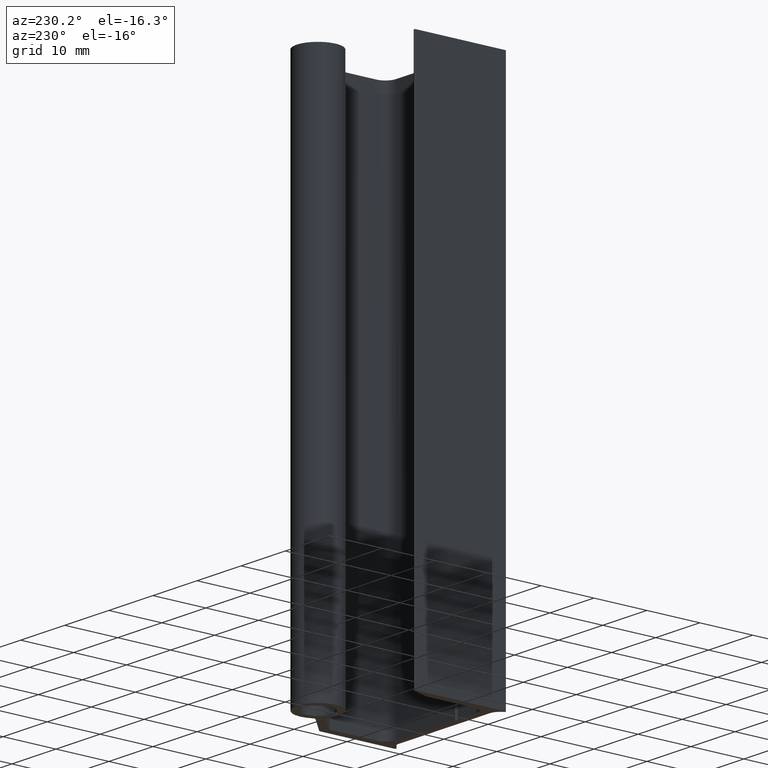
[diagram: clean part render]
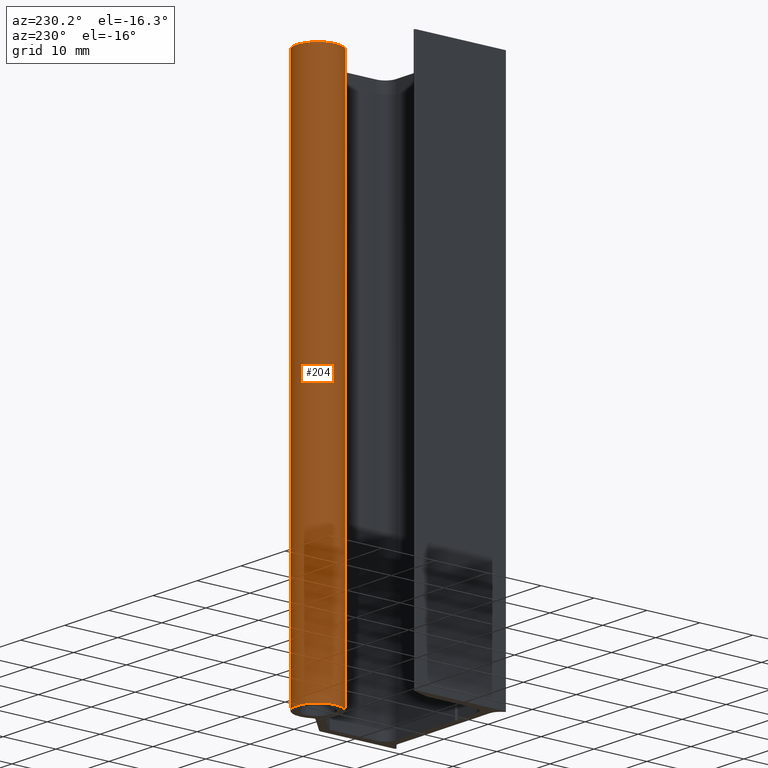
[diagram: same view with one face highlighted and labeled with its STEP entity id]
A machine part, auxiliary view. The second image highlights one B-rep face of the part: STEP entity #204.
In plain terms, the highlighted cylindrical surface (edge-blend (fillet) strip) has radius 4 mm, axis along (0, 0, 1).
Its self-contained STEP definition (entity closure, byte-faithful):
#144=CARTESIAN_POINT('',(8.102789592555155,18.068558810057709,0.0));
#145=VERTEX_POINT('',#144);
#153=CARTESIAN_POINT('',(8.102789592555155,18.068558810057709,100.0));
#154=VERTEX_POINT('',#153);
#155=CARTESIAN_POINT('',(8.102789592555155,18.068558810057709,0.0));
#156=DIRECTION('',(0.0,0.0,1.0));
#157=VECTOR('',#156,100.0);
#158=LINE('',#155,#157);
#159=EDGE_CURVE('',#145,#154,#158,.T.);
#172=CARTESIAN_POINT('',(4.599999999985585,19.999999999995055,0.0));
#173=DIRECTION('',(0.0,0.0,1.0));
#174=DIRECTION('',(0.875697398142385,-0.482860297484332,0.0));
#175=AXIS2_PLACEMENT_3D('',#172,#173,#174);
#176=CYLINDRICAL_SURFACE('',#175,4.000000000000036);
#177=CARTESIAN_POINT('',(6.531441189920997,16.497210407424461,0.0));
#178=VERTEX_POINT('',#177);
#179=CARTESIAN_POINT('',(4.599999999985585,19.999999999995058,0.0));
#180=DIRECTION('',(0.0,0.0,1.0));
#181=DIRECTION('',(0.875697398142385,-0.482860297484332,0.0));
#182=AXIS2_PLACEMENT_3D('',#179,#180,#181);
#183=CIRCLE('',#182,4.000000000000036);
#184=EDGE_CURVE('',#145,#178,#183,.T.);
#185=ORIENTED_EDGE('',*,*,#184,.T.);
#186=CARTESIAN_POINT('',(6.531441189920997,16.497210407424461,100.0));
#187=VERTEX_POINT('',#186);
#188=CARTESIAN_POINT('',(6.531441189920997,16.497210407424461,0.0));
#189=DIRECTION('',(0.0,0.0,1.0));
#190=VECTOR('',#189,100.0);
#191=LINE('',#188,#190);
#192=EDGE_CURVE('',#178,#187,#191,.T.);
#193=ORIENTED_EDGE('',*,*,#192,.T.);
#194=CARTESIAN_POINT('',(4.599999999985585,19.999999999995058,100.0));
#195=DIRECTION('',(0.0,0.0,1.0));
#196=DIRECTION('',(0.875697398142385,-0.482860297484332,0.0));
#197=AXIS2_PLACEMENT_3D('',#194,#195,#196);
#198=CIRCLE('',#197,4.000000000000036);
#199=EDGE_CURVE('',#154,#187,#198,.T.);
#200=ORIENTED_EDGE('',*,*,#199,.F.);
#201=ORIENTED_EDGE('',*,*,#159,.F.);
#202=EDGE_LOOP('',(#185,#193,#200,#201));
#203=FACE_OUTER_BOUND('',#202,.T.);
#204=ADVANCED_FACE('',(#203),#176,.T.);